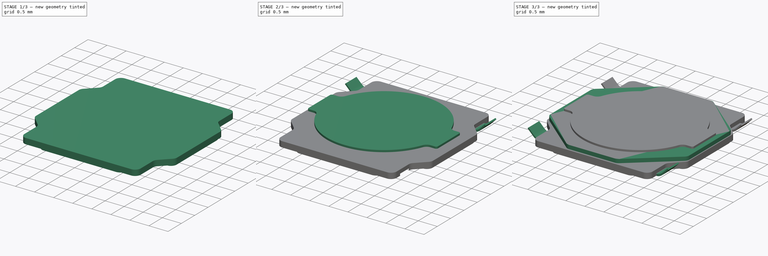
[diagram: build sequence overview — one tinted view per stage of 3, left to right]
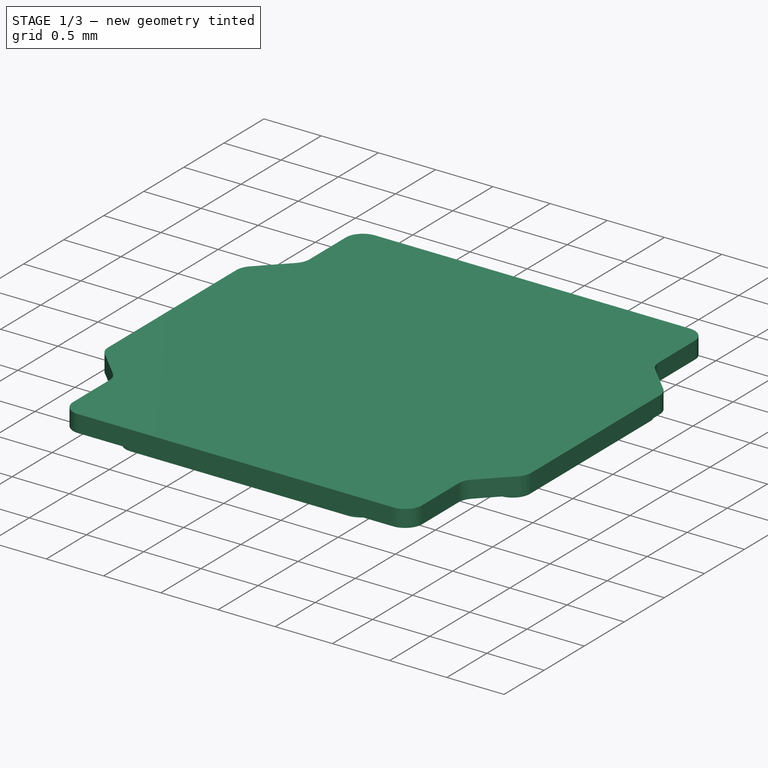
[diagram: stage 1 of 3 — iso view after this stage's code; geometry added in this stage tinted green]
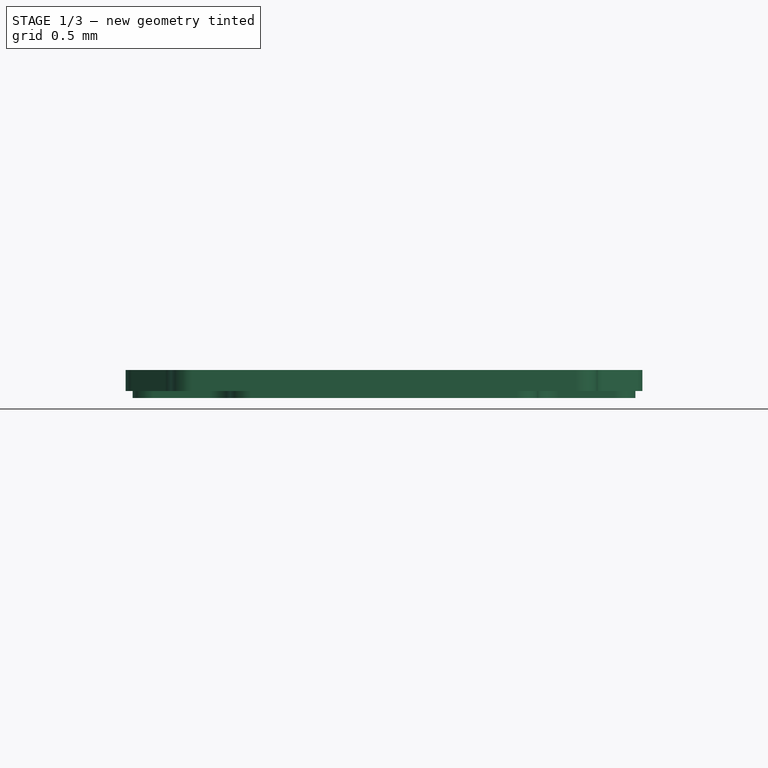
[diagram: stage 1 of 3 — front view after this stage's code; geometry added in this stage tinted green]
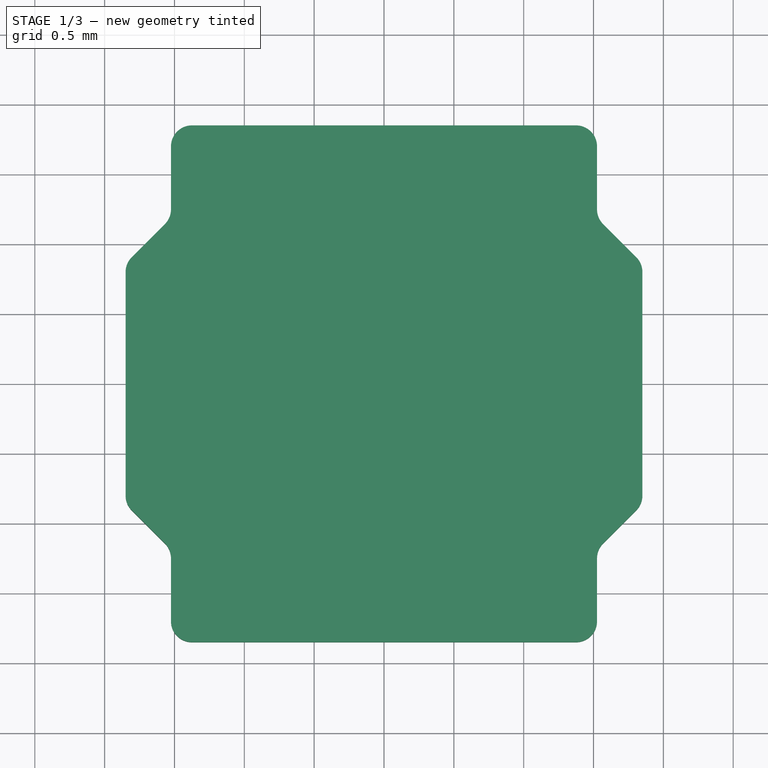
[diagram: stage 1 of 3 — top view after this stage's code; geometry added in this stage tinted green]
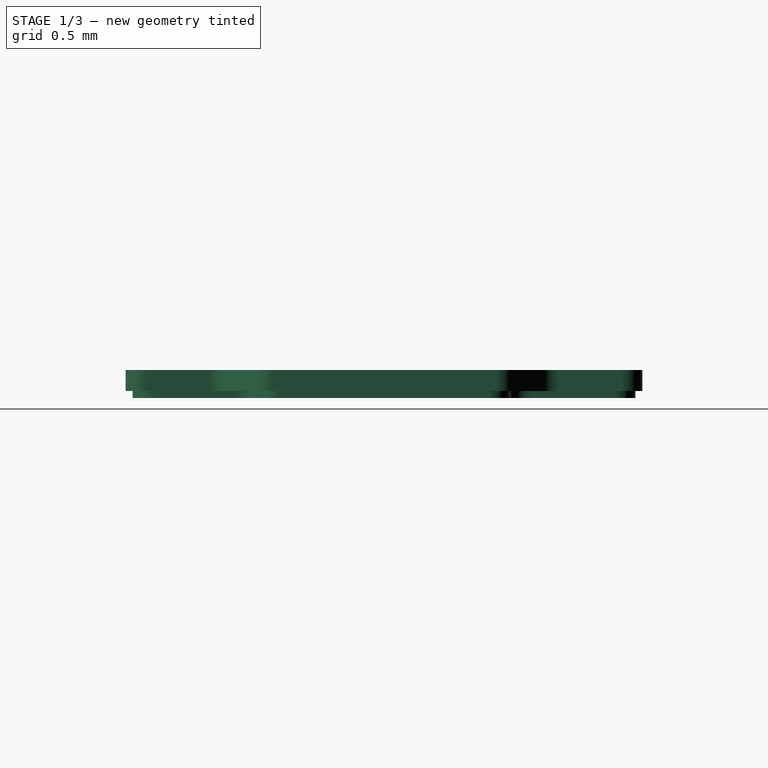
[diagram: stage 1 of 3 — right view after this stage's code; geometry added in this stage tinted green]
FCSTD DOCUMENT  (FreeCAD 1.1R44874 (Git))
Label: SW_SPST_PTS540
License: Creative Commons Attribution 4.0
LicenseURL: https://creativecommons.org/licenses/by/4.0/
objects: Sketcher::SketchObject×6, PartDesign::Pad×5, App::Point×3, PartDesign::Body×3, PartDesign::Mirrored×1, PartDesign::Pocket×1
note: 35 computed .brp shape members not serialized (recipe doc carries the construction recipe); baked Part::Feature solids carry a one-line shape summary decoded from their .brp

FEATURE [App::Point] Origin001
  Role = Origin
FEATURE [Sketcher::SketchObject] Sketch001  label="BasePlate"
  ArcFitTolerance = 1e-06
  AttachmentSupport = -> [Origin]
  ExternalTypes = [0]
  FullyConstrained = true
  MakeInternals = false
  MapMode = 5
  _ExternalGeoVersion = 1
  sketch-geometry (36):
    g0: LineSegment StartX=-0.95 StartY=1.8 StartZ=0 EndX=0.95 EndY=1.8 EndZ=0
    g1: LineSegment StartX=1.1 StartY=1.65 StartZ=0 EndX=1.1 EndY=1.05 EndZ=0
    g2: LineSegment StartX=1.25 StartY=0.9 StartZ=0 EndX=1.65 EndY=0.9 EndZ=0
    g3: LineSegment StartX=1.8 StartY=0.75 StartZ=0 EndX=1.8 EndY=-0.75 EndZ=0
    g4: LineSegment StartX=1.65 StartY=-0.9 StartZ=0 EndX=1.25 EndY=-0.9 EndZ=0
    g5: LineSegment StartX=1.1 StartY=-1.05 StartZ=0 EndX=1.1 EndY=-1.65 EndZ=0
    g6: LineSegment StartX=0.95 StartY=-1.8 StartZ=0 EndX=-0.95 EndY=-1.8 EndZ=0
    g7: LineSegment StartX=-1.1 StartY=-1.65 StartZ=0 EndX=-1.1 EndY=-1.05 EndZ=0
    g8: LineSegment StartX=-1.25 StartY=-0.9 StartZ=0 EndX=-1.65 EndY=-0.9 EndZ=0
    g9: LineSegment StartX=-1.8 StartY=-0.75 StartZ=0 EndX=-1.8 EndY=0.75 EndZ=0
    g10: LineSegment StartX=-1.65 StartY=0.9 StartZ=0 EndX=-1.25 EndY=0.9 EndZ=0
    g11: LineSegment StartX=-1.1 StartY=1.05 StartZ=0 EndX=-1.1 EndY=1.65 EndZ=0
    g12: ArcOfCircle CenterX=1.25 CenterY=1.05 CenterZ=0 NormalX=0 NormalY=0 NormalZ=1 AngleXU=0 Radius=0.15 StartAngle=3.14159 EndAngle=4.71239
    g13: GeomPoint [constr] X=1.1 Y=0.9 Z=0
    g14: ArcOfCircle CenterX=1.65 CenterY=0.75 CenterZ=0 NormalX=0 NormalY=0 NormalZ=1 AngleXU=0 Radius=0.15 StartAngle=0 EndAngle=1.5708
    g15: GeomPoint [constr] X=1.8 Y=0.9 Z=0
    g16: ArcOfCircle CenterX=0.95 CenterY=1.65 CenterZ=0 NormalX=0 NormalY=0 NormalZ=1 AngleXU=0 Radius=0.15 StartAngle=2.022e-13 EndAngle=1.5708
    g17: GeomPoint [constr] X=1.1 Y=1.8 Z=0
    g18: ArcOfCircle CenterX=-0.95 CenterY=1.65 CenterZ=0 NormalX=0 NormalY=0 NormalZ=1 AngleXU=0 Radius=0.15 StartAngle=1.5708 EndAngle=3.14159
    g19: GeomPoint [constr] X=-1.1 Y=1.8 Z=0
    g20: ArcOfCircle CenterX=-1.25 CenterY=1.05 CenterZ=0 NormalX=0 NormalY=0 NormalZ=1 AngleXU=0 Radius=0.15 StartAngle=4.71239 EndAngle=6.28319
    g21: GeomPoint [constr] X=-1.1 Y=0.9 Z=0
    g22: ArcOfCircle CenterX=-1.65 CenterY=0.75 CenterZ=0 NormalX=0 NormalY=0 NormalZ=1 AngleXU=0 Radius=0.15 StartAngle=1.5708 EndAngle=3.14159
    g23: GeomPoint [constr] X=-1.8 Y=0.9 Z=0
    g24: ArcOfCircle CenterX=-1.65 CenterY=-0.75 CenterZ=0 NormalX=0 NormalY=0 NormalZ=1 AngleXU=0 Radius=0.15 StartAngle=3.14159 EndAngle=4.71239
    g25: GeomPoint [constr] X=-1.8 Y=-0.9 Z=0
    g26: ArcOfCircle CenterX=-1.25 CenterY=-1.05 CenterZ=0 NormalX=0 NormalY=0 NormalZ=1 AngleXU=0 Radius=0.15 StartAngle=0 EndAngle=1.5708
    g27: GeomPoint [constr] X=-1.1 Y=-0.9 Z=0
    g28: ArcOfCircle CenterX=-0.95 CenterY=-1.65 CenterZ=0 NormalX=0 NormalY=0 NormalZ=1 AngleXU=0 Radius=0.15 StartAngle=3.14159 EndAngle=4.71239
    g29: GeomPoint [constr] X=-1.1 Y=-1.8 Z=0
    g30: ArcOfCircle CenterX=0.95 CenterY=-1.65 CenterZ=0 NormalX=0 NormalY=0 NormalZ=1 AngleXU=0 Radius=0.15 StartAngle=4.71239 EndAngle=6.28319
    g31: GeomPoint [constr] X=1.1 Y=-1.8 Z=0
    g32: ArcOfCircle CenterX=1.25 CenterY=-1.05 CenterZ=0 NormalX=0 NormalY=0 NormalZ=1 AngleXU=0 Radius=0.15 StartAngle=1.5708 EndAngle=3.14159
    g33: GeomPoint [constr] X=1.1 Y=-0.9 Z=0
    g34: ArcOfCircle CenterX=1.65 CenterY=-0.75 CenterZ=0 NormalX=0 NormalY=0 NormalZ=1 AngleXU=0 Radius=0.15 StartAngle=4.71239 EndAngle=6.28319
    g35: GeomPoint [constr] X=1.8 Y=-0.9 Z=0
  constraints (73):
    c: Horizontal(g2)
    c: Vertical(g7)
    c: Horizontal(g8)
    c: Vertical(g11)
    c: Symmetric(g17,g19,g-2)
    c: Symmetric(g13,g21,g-2)
    c: Symmetric(g33,g27,g-2)
    c: Symmetric(g31,g29,g-2)
    c: Symmetric(g15,g23,g-2)
    c: Symmetric(g35,g25,g-2)
    c: DistanceX(g19,g17) = 2.2
    c: DistanceY(g25,g23) = 1.8
    c: Symmetric(g25,g23,g-1)
    c: DistanceX(g23,g15) = 3.6
    c: Symmetric(g29,g19,g-1)
    c: DistanceY(g31,g17) = 3.6
    c: PointOnObject(g13,g1)
    c: PointOnObject(g13,g2)
    c: Tangent(g1,g12) = -1.5708
    c: Tangent(g2,g12) = -1.5708
    c: PointOnObject(g15,g2)
    c: PointOnObject(g15,g3)
    c: Tangent(g2,g14) = 1.5708
    c: Tangent(g3,g14) = 1.5708
    c: PointOnObject(g17,g0)
    c: PointOnObject(g17,g1)
    c: Tangent(g0,g16) = 1.5708
    c: Tangent(g1,g16) = 1.5708
    c: PointOnObject(g19,g11)
    c: Tangent(g0,g18) = 1.5708
    c: Tangent(g11,g18) = 1.5708
    c: PointOnObject(g21,g10)
    c: Tangent(g11,g20) = -1.5708
    c: Tangent(g10,g20) = -1.5708
    c: PointOnObject(g23,g10)
    c: PointOnObject(g23,g9)
    c: Tangent(g10,g22) = 1.5708
    c: Tangent(g9,g22) = 1.5708
    c: PointOnObject(g25,g9)
    c: PointOnObject(g25,g8)
    c: Tangent(g9,g24) = 1.5708
    c: Tangent(g8,g24) = 1.5708
    c: PointOnObject(g27,g8)
    c: PointOnObject(g27,g7)
    c: Tangent(g8,g26) = -1.5708
    c: Tangent(g7,g26) = -1.5708
    c: PointOnObject(g29,g6)
    c: PointOnObject(g29,g7)
    c: Tangent(g6,g28) = 1.5708
    c: Tangent(g7,g28) = 1.5708
    c: PointOnObject(g31,g5)
    c: Tangent(g6,g30) = 1.5708
    c: Tangent(g5,g30) = 1.5708
    c: PointOnObject(g33,g5)
    c: PointOnObject(g33,g4)
    c: Tangent(g5,g32) = -1.5708
    c: Tangent(g4,g32) = -1.5708
    c: PointOnObject(g35,g4)
    c: PointOnObject(g35,g3)
    c: Tangent(g4,g34) = 1.5708
    c: Tangent(g3,g34) = 1.5708
    c: Symmetric(g1,g11,g-2)
    c: Symmetric(g0,g0,g-2)
    c: Symmetric(g6,g6,g-2)
    c: Equal(g32,g30)
    c: Equal(g30,g34)
    c: Equal(g34,g26)
    c: Equal(g24,g26)
    c: Equal(g26,g22)
    c: Equal(g22,g20)
    c: Equal(g20,g18)
    c: Equal(g12,g14)
    c: Diameter(g16) = 0.3
FEATURE [PartDesign::Pad] Pad001  label="PadBasePlate"
  Direction = (0,0,1)
  Length = 0.05
  Length2 = 10
  Profile = -> Sketch001
  ReferenceAxis = -> Sketch001 [N_Axis]
  Refine = true
  SideType = 0
  Suppressed = false
  Type = 0
  Type2 = 0
FEATURE [Sketcher::SketchObject] Sketch002  label="Body"
  ArcFitTolerance = 1e-06
  AttachmentOffset = pos=(0,0,0.05) rot=(0,0,1;0rad)
  AttachmentSupport = -> [Origin]
  ExternalTypes = [0]
  FullyConstrained = true
  MakeInternals = false
  MapMode = 5
  Placement = pos=(0,0,0.05) rot=(0,0,1;0rad)
  _ExternalGeoVersion = 1
  sketch-geometry (33):
    g0: LineSegment StartX=-1.525 StartY=1.7 StartZ=0 EndX=-1.525 EndY=1.24926 EndZ=0
    g1: LineSegment StartX=-1.375 StartY=-1.85 StartZ=0 EndX=1.375 EndY=-1.85 EndZ=0
    g2: LineSegment StartX=1.525 StartY=-1.7 StartZ=0 EndX=1.525 EndY=-1.24926 EndZ=0
    g3: LineSegment StartX=1.375 StartY=1.85 StartZ=0 EndX=-1.375 EndY=1.85 EndZ=0
    g4: ArcOfCircle CenterX=-1.375 CenterY=1.7 CenterZ=0 NormalX=0 NormalY=0 NormalZ=1 AngleXU=0 Radius=0.15 StartAngle=1.5708 EndAngle=3.14159
    g5: ArcOfCircle CenterX=-1.375 CenterY=-1.7 CenterZ=0 NormalX=0 NormalY=0 NormalZ=1 AngleXU=0 Radius=0.15 StartAngle=3.14159 EndAngle=4.71239
    g6: ArcOfCircle CenterX=1.375 CenterY=-1.7 CenterZ=0 NormalX=0 NormalY=0 NormalZ=1 AngleXU=0 Radius=0.15 StartAngle=4.71239 EndAngle=6.28319
    g7: ArcOfCircle CenterX=1.375 CenterY=1.7 CenterZ=0 NormalX=0 NormalY=0 NormalZ=1 AngleXU=0 Radius=0.15 StartAngle=1e-16 EndAngle=1.5708
    g8: GeomPoint [constr] X=-1.525 Y=1.85 Z=0
    g9: GeomPoint [constr] X=1.525 Y=-1.85 Z=0
    g10: LineSegment StartX=-1.56893 StartY=1.1432 StartZ=0 EndX=-1.80607 EndY=0.906066 EndZ=0
    g11: LineSegment StartX=-1.85 StartY=0.8 StartZ=0 EndX=-1.85 EndY=-0.8 EndZ=0
    g12: LineSegment StartX=-1.80607 StartY=-0.906066 StartZ=0 EndX=-1.56893 EndY=-1.1432 EndZ=0
    g13: LineSegment StartX=-1.525 StartY=-1.24926 StartZ=0 EndX=-1.525 EndY=-1.7 EndZ=0
    g14: LineSegment StartX=1.56893 StartY=1.1432 StartZ=0 EndX=1.80607 EndY=0.906066 EndZ=0
    g15: LineSegment StartX=1.85 StartY=0.8 StartZ=0 EndX=1.85 EndY=-0.8 EndZ=0
    g16: LineSegment StartX=1.80607 StartY=-0.906066 StartZ=0 EndX=1.56893 EndY=-1.1432 EndZ=0
    g17: LineSegment StartX=1.525 StartY=1.24926 StartZ=0 EndX=1.525 EndY=1.7 EndZ=0
    g18: ArcOfCircle CenterX=1.675 CenterY=1.24926 CenterZ=0 NormalX=0 NormalY=0 NormalZ=1 AngleXU=0 Radius=0.15 StartAngle=3.14159 EndAngle=3.92699
    g19: GeomPoint [constr] X=1.525 Y=1.18713 Z=0
    g20: ArcOfCircle CenterX=1.7 CenterY=0.8 CenterZ=0 NormalX=0 NormalY=0 NormalZ=1 AngleXU=0 Radius=0.15 StartAngle=0 EndAngle=0.785398
    g21: GeomPoint [constr] X=1.85 Y=0.862132 Z=0
    g22: ArcOfCircle CenterX=1.7 CenterY=-0.8 CenterZ=0 NormalX=0 NormalY=0 NormalZ=1 AngleXU=0 Radius=0.15 StartAngle=5.49779 EndAngle=6.28319
    g23: ArcOfCircle CenterX=1.675 CenterY=-1.24926 CenterZ=0 NormalX=0 NormalY=0 NormalZ=1 AngleXU=0 Radius=0.15 StartAngle=2.35619 EndAngle=3.14159
    g24: GeomPoint [constr] X=1.525 Y=-1.18713 Z=0
    g25: ArcOfCircle CenterX=-1.675 CenterY=-1.24926 CenterZ=0 NormalX=0 NormalY=0 NormalZ=1 AngleXU=0 Radius=0.15 StartAngle=0 EndAngle=0.785398
    g26: GeomPoint [constr] X=-1.525 Y=-1.18713 Z=0
    g27: ArcOfCircle CenterX=-1.7 CenterY=-0.8 CenterZ=0 NormalX=0 NormalY=0 NormalZ=1 AngleXU=0 Radius=0.15 StartAngle=3.14159 EndAngle=3.92699
    g28: GeomPoint [constr] X=-1.85 Y=-0.862132 Z=0
    g29: ArcOfCircle CenterX=-1.7 CenterY=0.8 CenterZ=0 NormalX=0 NormalY=0 NormalZ=1 AngleXU=0 Radius=0.15 StartAngle=2.35619 EndAngle=3.14159
    g30: GeomPoint [constr] X=-1.85 Y=0.862132 Z=0
    g31: ArcOfCircle CenterX=-1.675 CenterY=1.24926 CenterZ=0 NormalX=0 NormalY=0 NormalZ=1 AngleXU=0 Radius=0.15 StartAngle=5.49779 EndAngle=6.28319
    g32: GeomPoint [constr] X=-1.525 Y=1.18713 Z=0
  constraints (68):
    c: Tangent(g0,g4) = -1.5708
    c: Tangent(g13,g5) = -1.5708
    c: Tangent(g1,g5) = -1.5708
    c: Tangent(g1,g6) = -1.5708
    c: Tangent(g2,g6) = -1.5708
    c: Tangent(g17,g7) = -1.5708
    c: Tangent(g3,g7) = -1.5708
    c: Tangent(g3,g4) = -1.5708
    c: Horizontal(g1)
    c: Equal(g4,g5)
    c: Equal(g6,g7)
    c: PointOnObject(g8,g3)
    c: PointOnObject(g9,g1)
    c: Diameter(g6) = 0.3
    c: Symmetric(g3,g3,g-2)
    c: Symmetric(g13,g0,g-1)
    c: DistanceX(g0,g17) = 3.05
    c: DistanceY(g1,g3) = 3.7
    c: PointOnObject(g8,g0)
    c: Vertical(g2)
    c: Vertical(g17)
    c: PointOnObject(g9,g2)
    c: PointOnObject(g19,g17)
    c: PointOnObject(g19,g14)
    c: Tangent(g17,g18) = 1.5708
    c: Tangent(g14,g18) = -1.5708
    c: PointOnObject(g21,g14)
    c: PointOnObject(g21,g15)
    c: Tangent(g14,g20) = 1.5708
    c: Tangent(g15,g20) = 1.5708
    c: Tangent(g15,g22) = 1.5708
    c: Tangent(g16,g22) = 1.5708
    c: PointOnObject(g24,g16)
    c: PointOnObject(g24,g2)
    c: Tangent(g16,g23) = -1.5708
    c: Tangent(g2,g23) = 1.5708
    c: PointOnObject(g26,g12)
    c: PointOnObject(g26,g13)
    c: Tangent(g12,g25) = 1.5708
    c: Tangent(g13,g25) = 1.5708
    c: PointOnObject(g28,g11)
    c: PointOnObject(g28,g12)
    c: Tangent(g11,g27) = -1.5708
    c: Tangent(g12,g27) = -1.5708
    c: PointOnObject(g30,g11)
    c: PointOnObject(g30,g10)
    c: Tangent(g11,g29) = -1.5708
    c: Tangent(g10,g29) = -1.5708
    c: PointOnObject(g32,g0)
    c: PointOnObject(g32,g10)
    c: Tangent(g0,g31) = 1.5708
    c: Tangent(g10,g31) = 1.5708
    c: Equal(g31,g4)
    c: Equal(g4,g29)
    c: Equal(g29,g27)
    c: Equal(g22,g23)
    c: Equal(g23,g20)
    c: Symmetric(g15,g15,g-1)
    c: Symmetric(g11,g11,g-1)
    c: Symmetric(g13,g2,g-2)
    c: Symmetric(g5,g2,g-2)
    c: Symmetric(g0,g17,g-2)
    c: Symmetric(g15,g11,g-2)
    c: Symmetric(g14,g10,g-2)
    c: Symmetric(g10,g12,g-1)
    c: DistanceX(g11,g15) = 3.7
    c: DistanceY(g11,g11) = 1.6
    c: Angle(g14,g-1) = 0.785398
FEATURE [PartDesign::Pad] Pad002  label="PadBody"
  BaseFeature = -> Pad001
  Direction = (0,0,1)
  Length = 0.15
  Length2 = 10
  Profile = -> Sketch002
  ReferenceAxis = -> Sketch002 [N_Axis]
  Refine = true
  SideType = 0
  Suppressed = false
  Type = 0
  Type2 = 0
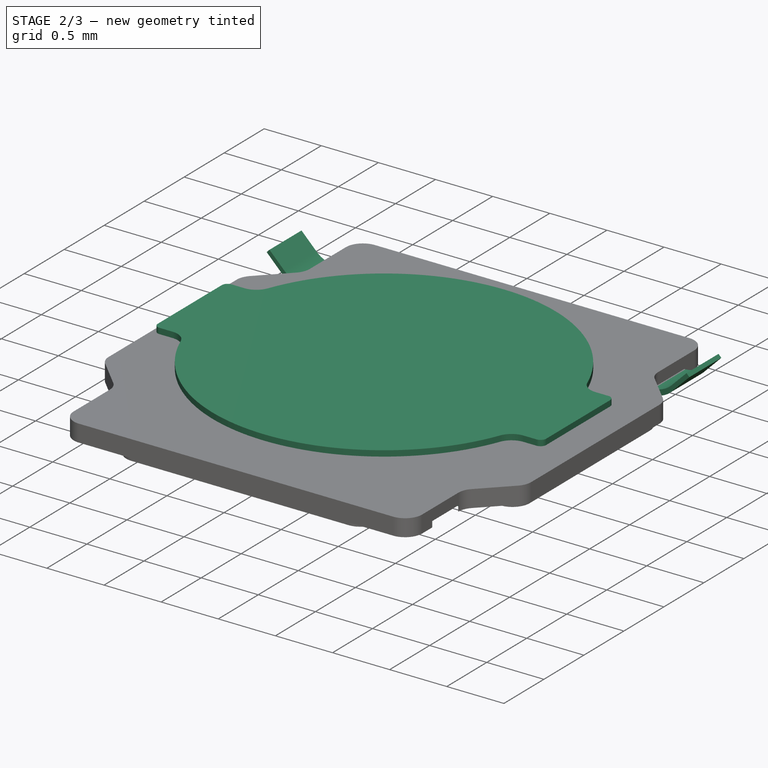
[diagram: stage 2 of 3 — iso view after this stage's code; geometry added in this stage tinted green]
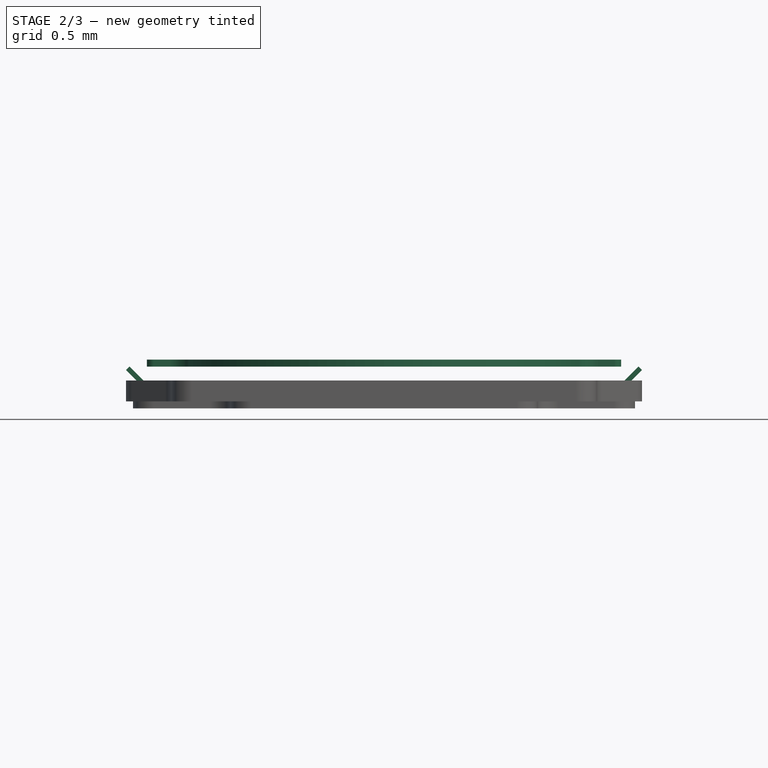
[diagram: stage 2 of 3 — front view after this stage's code; geometry added in this stage tinted green]
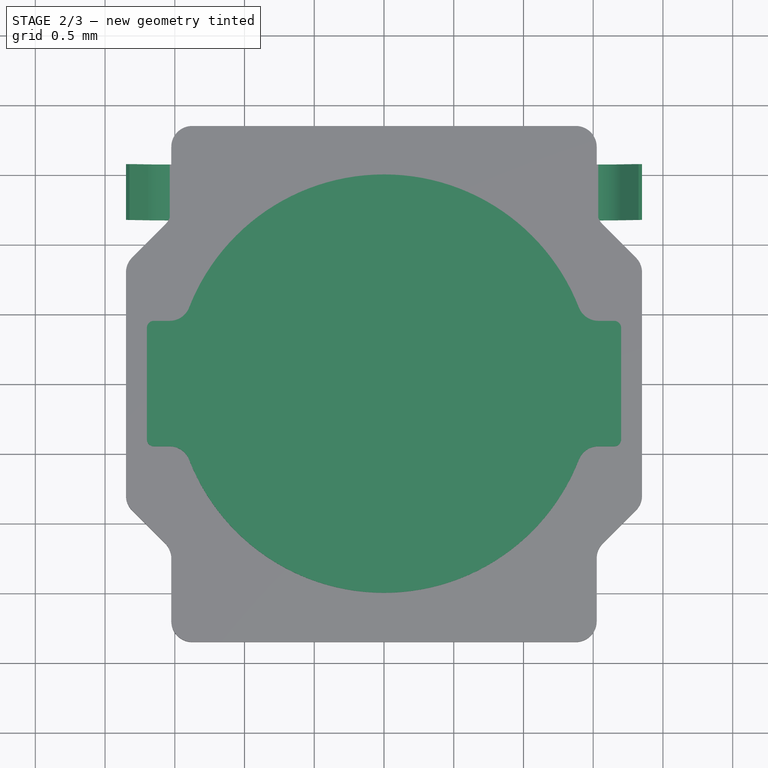
[diagram: stage 2 of 3 — top view after this stage's code; geometry added in this stage tinted green]
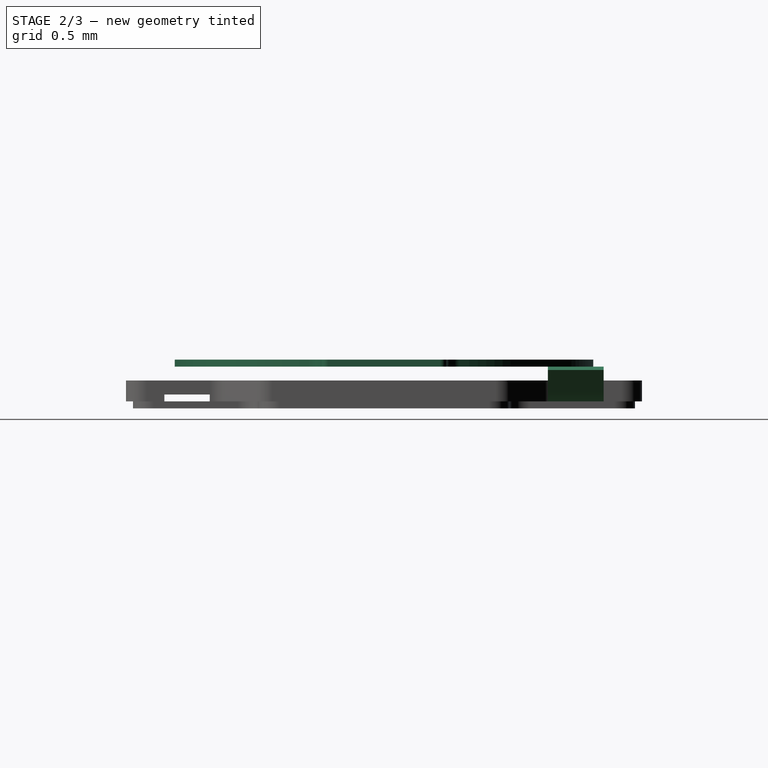
[diagram: stage 2 of 3 — right view after this stage's code; geometry added in this stage tinted green]
FEATURE [Sketcher::SketchObject] Sketch003  label="TopPlate"
  ArcFitTolerance = 1e-06
  AttachmentOffset = pos=(0,0,0.2) rot=(0,0,1;0rad)
  AttachmentSupport = -> [Origin]
  ExternalTypes = [0]
  FullyConstrained = true
  MakeInternals = false
  MapMode = 5
  Placement = pos=(0,0,0.2) rot=(0,0,1;0rad)
  _ExternalGeoVersion = 1
  sketch-geometry (24):
    g0: LineSegment StartX=-1.77129 StartY=0.865014 StartZ=0 EndX=-0.69629 EndY=1.76501 EndZ=0
    g1: LineSegment StartX=-0.6 StartY=1.8 StartZ=0 EndX=0.6 EndY=1.8 EndZ=0
    g2: LineSegment StartX=0.69629 StartY=1.76501 StartZ=0 EndX=1.77129 EndY=0.865014 EndZ=0
    g3: LineSegment StartX=1.825 StartY=0.75 StartZ=0 EndX=1.825 EndY=-0.75 EndZ=0
    g4: LineSegment StartX=1.77129 StartY=-0.865014 StartZ=0 EndX=0.69629 EndY=-1.76501 EndZ=0
    g5: LineSegment StartX=0.6 StartY=-1.8 StartZ=0 EndX=-0.6 EndY=-1.8 EndZ=0
    g6: LineSegment StartX=-0.69629 StartY=-1.76501 StartZ=0 EndX=-1.77129 EndY=-0.865014 EndZ=0
    g7: LineSegment StartX=-1.825 StartY=-0.75 StartZ=0 EndX=-1.825 EndY=0.75 EndZ=0
    g8: ArcOfCircle CenterX=-0.6 CenterY=1.65 CenterZ=0 NormalX=0 NormalY=0 NormalZ=1 AngleXU=0 Radius=0.15 StartAngle=1.5708 EndAngle=2.26782
    g9: GeomPoint [constr] X=-0.654501 Y=1.8 Z=0
    g10: ArcOfCircle CenterX=-1.675 CenterY=0.75 CenterZ=0 NormalX=0 NormalY=0 NormalZ=1 AngleXU=0 Radius=0.15 StartAngle=2.26782 EndAngle=3.14159
    g11: GeomPoint [constr] X=-1.825 Y=0.820048 Z=0
    g12: ArcOfCircle CenterX=-1.675 CenterY=-0.75 CenterZ=0 NormalX=0 NormalY=0 NormalZ=1 AngleXU=0 Radius=0.15 StartAngle=3.14159 EndAngle=4.01537
    g13: GeomPoint [constr] X=-1.825 Y=-0.820048 Z=0
    g14: ArcOfCircle CenterX=-0.6 CenterY=-1.65 CenterZ=0 NormalX=0 NormalY=0 NormalZ=1 AngleXU=0 Radius=0.15 StartAngle=4.01537 EndAngle=4.71239
    g15: GeomPoint [constr] X=-0.654501 Y=-1.8 Z=0
    g16: ArcOfCircle CenterX=0.6 CenterY=-1.65 CenterZ=0 NormalX=0 NormalY=0 NormalZ=1 AngleXU=0 Radius=0.15 StartAngle=4.71239 EndAngle=5.40941
    g17: GeomPoint [constr] X=0.654501 Y=-1.8 Z=0
    g18: ArcOfCircle CenterX=1.675 CenterY=-0.75 CenterZ=0 NormalX=0 NormalY=0 NormalZ=1 AngleXU=0 Radius=0.15 StartAngle=5.40941 EndAngle=6.28319
    g19: GeomPoint [constr] X=1.825 Y=-0.820048 Z=0
    g20: ArcOfCircle CenterX=1.675 CenterY=0.75 CenterZ=0 NormalX=0 NormalY=0 NormalZ=1 AngleXU=0 Radius=0.15 StartAngle=2e-16 EndAngle=0.873775
    g21: GeomPoint [constr] X=1.825 Y=0.820048 Z=0
    g22: ArcOfCircle CenterX=0.6 CenterY=1.65 CenterZ=0 NormalX=0 NormalY=0 NormalZ=1 AngleXU=0 Radius=0.15 StartAngle=0.873775 EndAngle=1.5708
    g23: GeomPoint [constr] X=0.654501 Y=1.8 Z=0
  constraints (50):
    c: PointOnObject(g9,g1)
    c: PointOnObject(g9,g0)
    c: Tangent(g1,g8) = 1.5708
    c: Tangent(g0,g8) = 1.5708
    c: PointOnObject(g11,g0)
    c: PointOnObject(g11,g7)
    c: Tangent(g0,g10) = 1.5708
    c: Tangent(g7,g10) = 1.5708
    c: PointOnObject(g13,g7)
    c: PointOnObject(g13,g6)
    c: Tangent(g7,g12) = 1.5708
    c: Tangent(g6,g12) = 1.5708
    c: PointOnObject(g15,g6)
    c: PointOnObject(g15,g5)
    c: Tangent(g6,g14) = 1.5708
    c: Tangent(g5,g14) = 1.5708
    c: PointOnObject(g17,g5)
    c: PointOnObject(g17,g4)
    c: Tangent(g5,g16) = 1.5708
    c: Tangent(g4,g16) = 1.5708
    c: PointOnObject(g19,g4)
    c: PointOnObject(g19,g3)
    c: Tangent(g4,g18) = 1.5708
    c: Tangent(g3,g18) = 1.5708
    c: PointOnObject(g21,g3)
    c: PointOnObject(g21,g2)
    c: Tangent(g3,g20) = 1.5708
    c: Tangent(g2,g20) = 1.5708
    c: PointOnObject(g23,g1)
    c: PointOnObject(g23,g2)
    c: Tangent(g1,g22) = 1.5708
    c: Tangent(g2,g22) = 1.5708
    c: Equal(g8,g22)
    c: Equal(g22,g20)
    c: Equal(g20,g18)
    c: Equal(g18,g16)
    c: Equal(g16,g14)
    c: Equal(g14,g12)
    c: Equal(g12,g10)
    c: Symmetric(g7,g7,g-1)
    c: Symmetric(g1,g1,g-2)
    c: Symmetric(g3,g3,g-1)
    c: Symmetric(g5,g5,g-2)
    c: Symmetric(g3,g7,g-2)
    c: DistanceX(g7,g3) = 3.65
    c: Symmetric(g5,g1,g-1)
    c: Diameter(g8) = 0.3
    c: DistanceY(g5,g1) = 3.6
    c: DistanceX(g1,g1) = 1.2
    c: DistanceY(g3,g3) = 1.5
FEATURE [App::Point] Origin003
  Role = Origin
FEATURE [Sketcher::SketchObject] Sketch005  label="LeadsSide"
  ArcFitTolerance = 1e-06
  AttachmentOffset = pos=(0,0.05,-1.375) rot=(0,0,1;0rad)
  AttachmentSupport = -> [Origin,Origin002]
  ExternalTypes = [0]
  FullyConstrained = true
  MakeInternals = false
  MapMode = 5
  Placement = pos=(0,1.375,0.05) rot=(1,0,0;1.5708rad)
  _ExternalGeoVersion = 1
  sketch-geometry (12):
    g0: LineSegment StartX=1.525 StartY=0 StartZ=0 EndX=-1.525 EndY=0 EndZ=0
    g1: LineSegment StartX=1.69571 StartY=0.0707106 StartZ=0 EndX=1.85 EndY=0.225 EndZ=0
    g2: LineSegment StartX=-1.525 StartY=0.05 StartZ=0 EndX=1.525 EndY=0.05 EndZ=0
    g3: LineSegment StartX=1.69571 StartY=0.120711 StartZ=0 EndX=1.825 EndY=0.25 EndZ=0
    g4: ArcOfCircle CenterX=1.525 CenterY=0.291421 CenterZ=0 NormalX=0 NormalY=0 NormalZ=1 AngleXU=0 Radius=0.241421 StartAngle=4.71239 EndAngle=5.49779
    g5: ArcOfCircle CenterX=1.525 CenterY=0.241421 CenterZ=0 NormalX=0 NormalY=0 NormalZ=1 AngleXU=0 Radius=0.241421 StartAngle=4.71239 EndAngle=5.49779
    g6: LineSegment StartX=1.825 StartY=0.25 StartZ=0 EndX=1.85 EndY=0.225 EndZ=0
    g7: LineSegment StartX=-1.69571 StartY=0.0707106 StartZ=0 EndX=-1.85 EndY=0.225 EndZ=0
    g8: LineSegment StartX=-1.69571 StartY=0.120711 StartZ=0 EndX=-1.825 EndY=0.25 EndZ=0
    g9: ArcOfCircle CenterX=-1.525 CenterY=0.291421 CenterZ=0 NormalX=0 NormalY=0 NormalZ=1 AngleXU=0 Radius=0.241421 StartAngle=3.92699 EndAngle=4.71239
    g10: ArcOfCircle CenterX=-1.525 CenterY=0.241421 CenterZ=0 NormalX=0 NormalY=0 NormalZ=1 AngleXU=0 Radius=0.241421 StartAngle=3.92699 EndAngle=4.71239
    g11: LineSegment StartX=-1.825 StartY=0.25 StartZ=0 EndX=-1.85 EndY=0.225 EndZ=0
  constraints (30):
    c: PointOnObject(g0,g-1)
    c: Tangent(g2,g4) = -1.5708
    c: Tangent(g3,g4) = -1.5708
    c: Tangent(g0,g5) = 1.5708
    c: Tangent(g1,g5) = -1.5708
    c: Coincident(g6,g3)
    c: Coincident(g6,g1)
    c: Angle(g-1,g1) = 0.785398
    c: Angle(g6,g1) = 1.5708
    c: Equal(g4,g5)
    c: Vertical(g2,g0)
    c: Angle(g-1,g3) = 0.785398
    c: Symmetric(g1,g7,g-2)
    c: Symmetric(g1,g7,g-2)
    c: Symmetric(g3,g8,g-2)
    c: Symmetric(g3,g8,g-2)
    c: Equal(g4,g9)
    c: Symmetric(g4,g9,g-2)
    c: Symmetric(g4,g9,g-2)
    c: Equal(g5,g10)
    c: Symmetric(g5,g10,g-2)
    c: Symmetric(g5,g10,g-2)
    c: Symmetric(g6,g11,g-2)
    c: Symmetric(g6,g11,g-2)
    c: Coincident(g2,g9)
    c: Coincident(g0,g10)
    c: Distance(g0,g2) = 0.05
    c: DistanceX(g0,g0) = 3.05
    c: DistanceX(g7,g1) = 3.7
    c: Distance(g3,g-1) = 0.25
FEATURE [PartDesign::Pad] Pad005  label="PadLeadsSide"
  Direction = (0,-1,2e-16)
  Length = 0.4
  Length2 = 10
  Placement = pos=(0,1.375,0.05) rot=(1,0,0;1.5708rad)
  Profile = -> Sketch005
  ReferenceAxis = -> Sketch005 [N_Axis]
  Refine = true
  SideType = 2
  Suppressed = false
  Type = 0
  Type2 = 0
FEATURE [PartDesign::Body] Body001  label="Leads"
  AllowCompound = true
  Group = -> [Sketch005,Pad005,Mirrored001]
  Origin = -> Origin002
  Tip = -> Mirrored001
FEATURE [App::Point] Origin005  label="Origin006"
  Role = Origin
FEATURE [Sketcher::SketchObject] Sketch006  label="Actuator001"
  ArcFitTolerance = 1e-06
  AttachmentOffset = pos=(0,0,0.3) rot=(0,0,1;0rad)
  AttachmentSupport = -> [Origin]
  ExternalTypes = [0]
  FullyConstrained = true
  MakeInternals = false
  MapMode = 5
  Placement = pos=(0,0,0.3) rot=(0,0,1;0rad)
  _ExternalGeoVersion = 1
  sketch-geometry (20):
    g0: ArcOfCircle CenterX=0 CenterY=0 CenterZ=0 NormalX=0 NormalY=0 NormalZ=1 AngleXU=0 Radius=1.5 StartAngle=3.51376 EndAngle=5.91102
    g1: LineSegment StartX=-1.53704 StartY=0.45 StartZ=0 EndX=-1.65 EndY=0.45 EndZ=0
    g2: LineSegment StartX=-1.7 StartY=0.4 StartZ=0 EndX=-1.7 EndY=-0.4 EndZ=0
    g3: LineSegment StartX=-1.65 StartY=-0.45 StartZ=0 EndX=-1.53704 EndY=-0.45 EndZ=0
    g4: LineSegment StartX=1.53704 StartY=-0.45 StartZ=0 EndX=1.65 EndY=-0.45 EndZ=0
    g5: LineSegment StartX=1.7 StartY=-0.4 StartZ=0 EndX=1.7 EndY=0.4 EndZ=0
    g6: LineSegment StartX=1.65 StartY=0.45 StartZ=0 EndX=1.53704 EndY=0.45 EndZ=0
    g7: ArcOfCircle CenterX=0 CenterY=-3e-16 CenterZ=0 NormalX=0 NormalY=0 NormalZ=1 AngleXU=0 Radius=1.5 StartAngle=0.372169 EndAngle=2.76942
    g8: ArcOfCircle CenterX=-1.65 CenterY=0.4 CenterZ=0 NormalX=0 NormalY=0 NormalZ=1 AngleXU=0 Radius=0.05 StartAngle=1.5708 EndAngle=3.14159
    g9: GeomPoint [constr] X=-1.7 Y=0.45 Z=0
    g10: ArcOfCircle CenterX=-1.65 CenterY=-0.4 CenterZ=0 NormalX=0 NormalY=0 NormalZ=1 AngleXU=0 Radius=0.05 StartAngle=3.14159 EndAngle=4.71239
    g11: GeomPoint [constr] X=-1.7 Y=-0.45 Z=0
    g12: ArcOfCircle CenterX=-1.53704 CenterY=-0.6 CenterZ=0 NormalX=0 NormalY=0 NormalZ=1 AngleXU=0 Radius=0.15 StartAngle=0.372169 EndAngle=1.5708
    g13: ArcOfCircle CenterX=-1.53704 CenterY=0.6 CenterZ=0 NormalX=0 NormalY=0 NormalZ=1 AngleXU=0 Radius=0.15 StartAngle=4.71239 EndAngle=5.91102
    g14: ArcOfCircle CenterX=1.53704 CenterY=0.6 CenterZ=0 NormalX=0 NormalY=0 NormalZ=1 AngleXU=0 Radius=0.15 StartAngle=3.51376 EndAngle=4.71239
    g15: ArcOfCircle CenterX=1.53704 CenterY=-0.6 CenterZ=0 NormalX=0 NormalY=0 NormalZ=1 AngleXU=0 Radius=0.15 StartAngle=1.5708 EndAngle=2.76942
    g16: ArcOfCircle CenterX=1.65 CenterY=0.4 CenterZ=0 NormalX=0 NormalY=0 NormalZ=1 AngleXU=0 Radius=0.05 StartAngle=1e-16 EndAngle=1.5708
    g17: GeomPoint [constr] X=1.7 Y=0.45 Z=0
    g18: ArcOfCircle CenterX=1.65 CenterY=-0.4 CenterZ=0 NormalX=0 NormalY=0 NormalZ=1 AngleXU=0 Radius=0.05 StartAngle=4.71239 EndAngle=6.28319
    g19: GeomPoint [constr] X=1.7 Y=-0.45 Z=0
  constraints (46):
    c: Coincident(g0,g-1)
    c: Horizontal(g1)
    c: Vertical(g2)
    c: Horizontal(g3)
    c: Horizontal(g4)
    c: Vertical(g5)
    c: Horizontal(g6)
    c: Equal(g7,g0)
    c: PointOnObject(g9,g1)
    c: PointOnObject(g9,g2)
    c: Tangent(g1,g8) = -1.5708
    c: Tangent(g2,g8) = -1.5708
    c: PointOnObject(g11,g2)
    c: PointOnObject(g11,g3)
    c: Tangent(g2,g10) = -1.5708
    c: Tangent(g3,g10) = -1.5708
    c: Tangent(g3,g12) = 1.5708
    c: Tangent(g0,g12) = 1.5708
    c: Tangent(g1,g13) = 1.5708
    c: Tangent(g7,g13) = 1.5708
    c: Tangent(g7,g14) = 1.5708
    c: Tangent(g6,g14) = 1.5708
    c: Tangent(g4,g15) = 1.5708
    c: Tangent(g0,g15) = 1.5708
    c: Equal(g12,g13)
    c: PointOnObject(g17,g6)
    c: PointOnObject(g17,g5)
    c: Tangent(g6,g16) = -1.5708
    c: Tangent(g5,g16) = -1.5708
    c: PointOnObject(g19,g5)
    c: PointOnObject(g19,g4)
    c: Tangent(g5,g18) = -1.5708
    c: Tangent(g4,g18) = -1.5708
    c: Symmetric(g1,g3,g-1)
    c: Symmetric(g6,g4,g-1)
    c: DistanceX(g2,g5) = 3.4
    c: DistanceY(g3,g1) = 0.9
    c: Symmetric(g5,g2,g-2)
    c: Diameter(g13) = 0.3
    c: Diameter(g7) = 3
    c: Equal(g14,g15)
    c: Equal(g15,g12)
    c: Equal(g8,g10)
    c: Equal(g10,g18)
    c: Equal(g18,g16)
    c: Radius(g8) = 0.05
FEATURE [PartDesign::Pad] Pad  label="PadActuator"
  Direction = (0,0,1)
  Length = 0.05
  Length2 = 10
  Profile = -> Sketch006
  ReferenceAxis = -> Sketch006 [N_Axis]
  Refine = true
  SideType = 0
  Suppressed = false
  Type = 0
  Type2 = 0
FEATURE [PartDesign::Body] Body002  label="Actuator"
  AllowCompound = true
  Group = -> [Sketch006,Pad]
  Origin = -> Origin004
  Tip = -> Pad
FEATURE [Sketcher::SketchObject] Sketch  label="LeadSlots"
  ArcFitTolerance = 1e-06
  AttachmentSupport = -> [Pad002]
  ExternalTypes = [0]
  FullyConstrained = true
  MakeInternals = false
  MapMode = 5
  Placement = pos=(0,0,0.05) rot=(1,0,0;3.14159rad)
  _ExternalGeoVersion = 1
  sketch-geometry (8):
    g0: LineSegment StartX=-1.525 StartY=1.575 StartZ=0 EndX=-1.525 EndY=1.175 EndZ=0
    g1: LineSegment StartX=-1.525 StartY=1.175 StartZ=0 EndX=1.525 EndY=1.175 EndZ=0
    g2: LineSegment StartX=1.525 StartY=1.175 StartZ=0 EndX=1.525 EndY=1.575 EndZ=0
    g3: LineSegment StartX=1.525 StartY=1.575 StartZ=0 EndX=-1.525 EndY=1.575 EndZ=0
    g4: LineSegment StartX=-1.525 StartY=-1.575 StartZ=0 EndX=-1.525 EndY=-1.175 EndZ=0
    g5: LineSegment StartX=-1.525 StartY=-1.175 StartZ=0 EndX=1.525 EndY=-1.175 EndZ=0
    g6: LineSegment StartX=1.525 StartY=-1.175 StartZ=0 EndX=1.525 EndY=-1.575 EndZ=0
    g7: LineSegment StartX=1.525 StartY=-1.575 StartZ=0 EndX=-1.525 EndY=-1.575 EndZ=0
  constraints (19):
    c: Coincident(g0,g1)
    c: Coincident(g1,g2)
    c: Coincident(g2,g3)
    c: Coincident(g3,g0)
    c: Vertical(g0)
    c: Vertical(g2)
    c: Horizontal(g1)
    c: DistanceX(g0,g2) = 3.05
    c: Symmetric(g0,g4,g-1)
    c: Symmetric(g0,g4,g-1)
    c: Symmetric(g1,g5,g-1)
    c: Symmetric(g1,g5,g-1)
    c: Symmetric(g2,g6,g-1)
    c: Symmetric(g2,g6,g-1)
    c: Symmetric(g3,g7,g-1)
    c: Symmetric(g3,g7,g-1)
    c: DistanceY(g5,g1) = 2.35
    c: DistanceY(g6,g2) = 3.15
    c: Symmetric(g2,g0,g-2)
FEATURE [PartDesign::Pocket] Pocket  label="PocketLeadSlots"
  BaseFeature = -> Pad002
  Direction = (0,0,1)
  Length = 0.05
  Length2 = 5
  Profile = -> Sketch
  ReferenceAxis = -> Sketch [N_Axis]
  Refine = true
  SideType = 0
  Suppressed = false
  Type = 0
  Type2 = 0
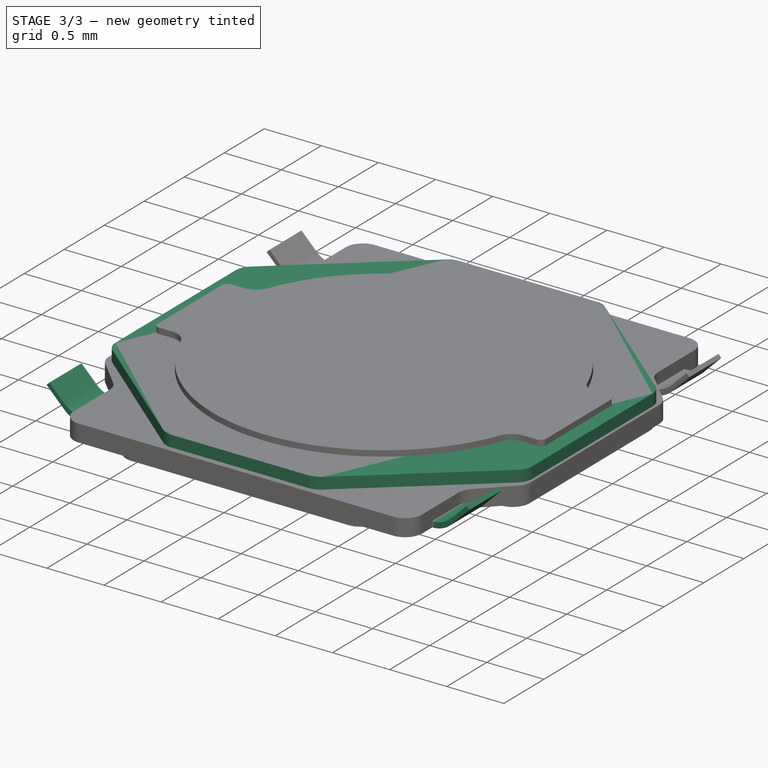
[diagram: stage 3 of 3 — iso view after this stage's code; geometry added in this stage tinted green]
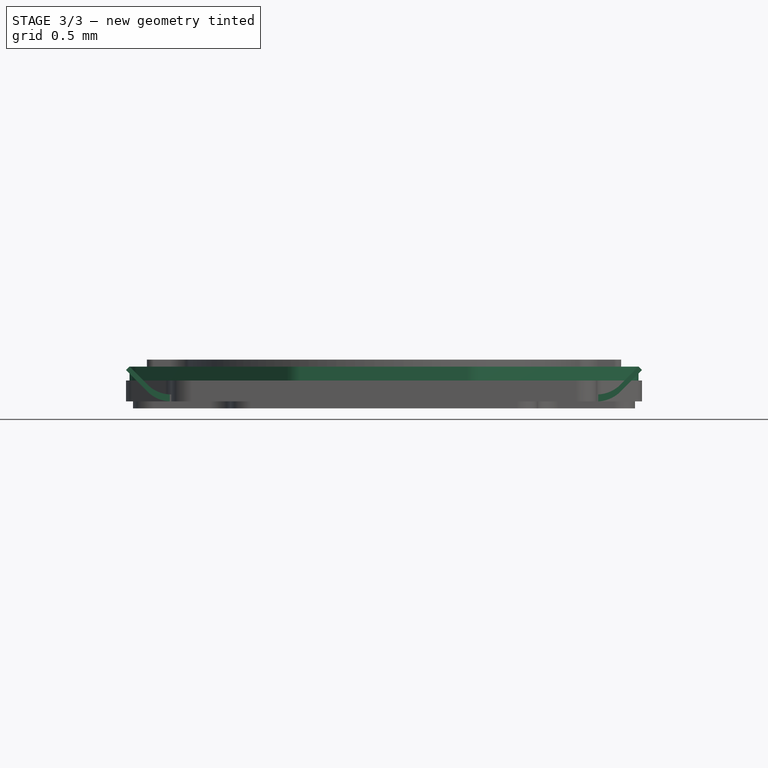
[diagram: stage 3 of 3 — front view after this stage's code; geometry added in this stage tinted green]
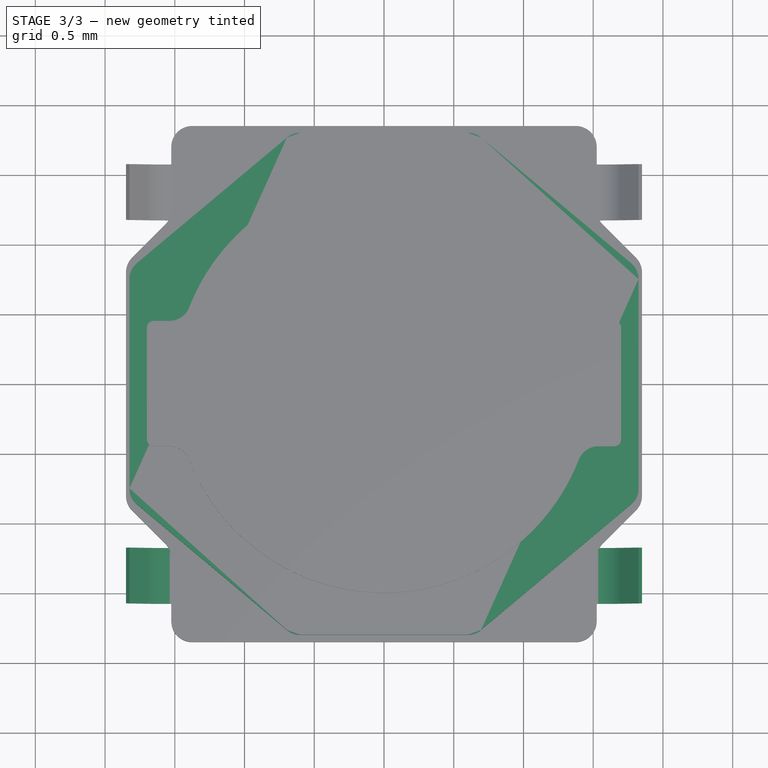
[diagram: stage 3 of 3 — top view after this stage's code; geometry added in this stage tinted green]
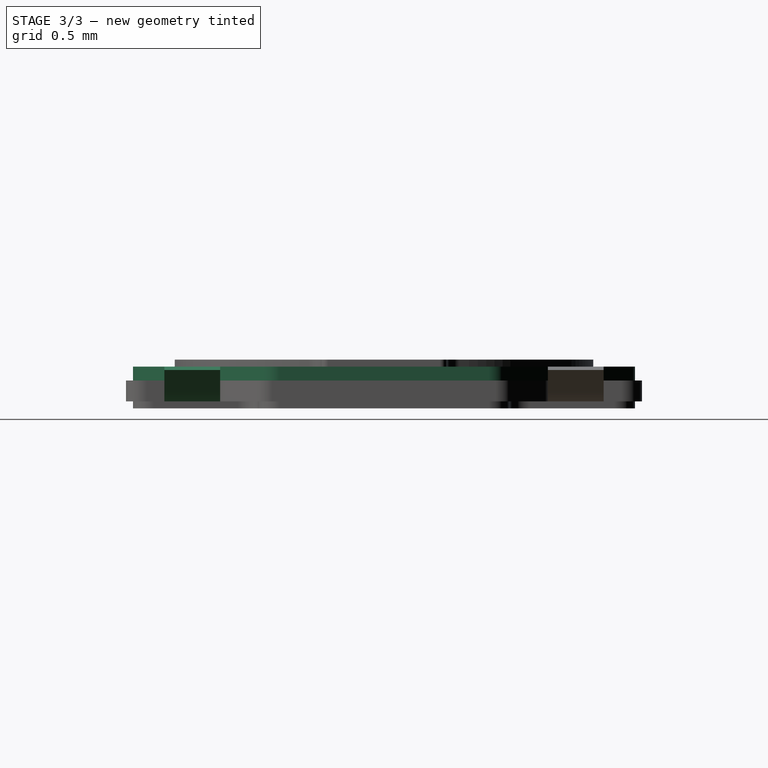
[diagram: stage 3 of 3 — right view after this stage's code; geometry added in this stage tinted green]
FEATURE [PartDesign::Mirrored] Mirrored001  label="MirrorLeads"
  BaseFeature = -> Pad005
  MirrorPlane = -> XZ_Plane001
  Originals = -> [Pad005]
  Placement = pos=(0,1.375,0.05) rot=(1,0,0;1.5708rad)
  Refine = true
  Suppressed = false
  TransformMode = 0
FEATURE [PartDesign::Pad] Pad003  label="PadTopPlate"
  BaseFeature = -> Pocket
  Direction = (0,0,1)
  Length = 0.1
  Length2 = 10
  Profile = -> Sketch003
  ReferenceAxis = -> Sketch003 [N_Axis]
  Refine = true
  SideType = 0
  Suppressed = false
  Type = 0
  Type2 = 0
FEATURE [PartDesign::Body] Body  label="Base"
  AllowCompound = true
  Group = -> [Pad001,Pad002,Sketch001,Sketch002,Sketch003,Sketch,Pocket,Pad003]
  Origin = -> Origin
  Tip = -> Pad003
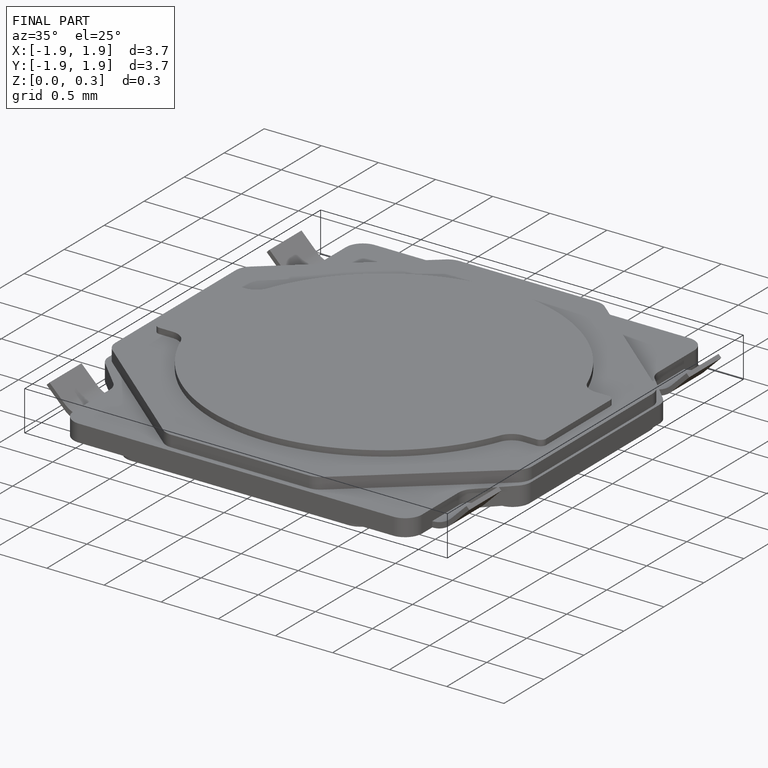
[diagram: finished part — iso view with bounding-box wireframe]
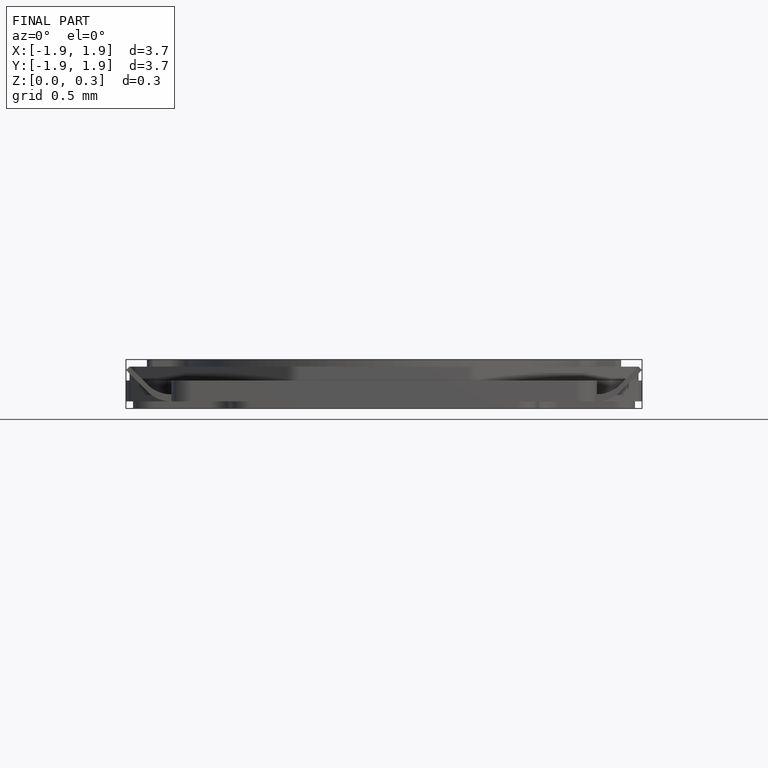
[diagram: finished part — front view with bounding-box wireframe]
